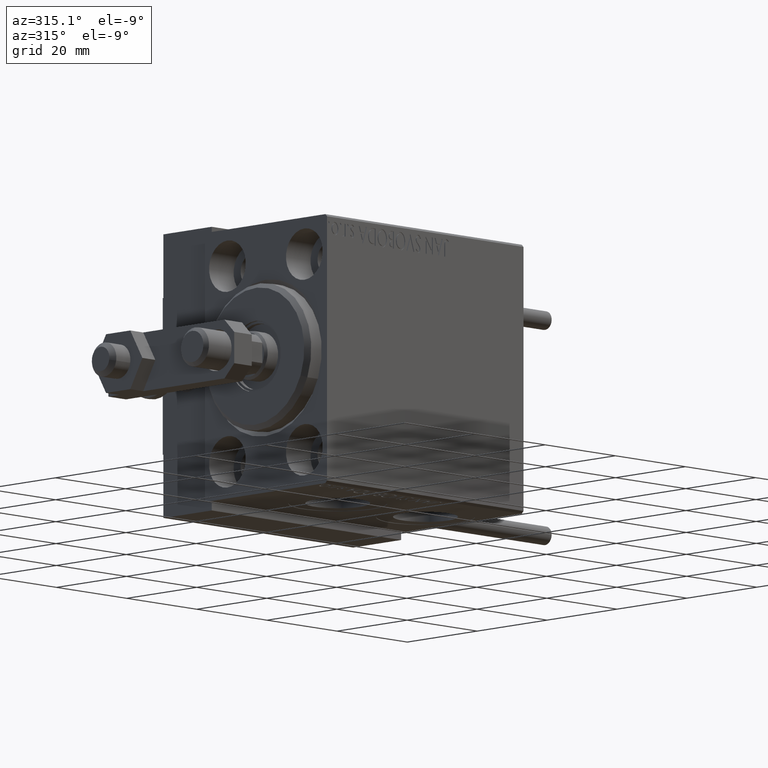
[diagram: clean part render]
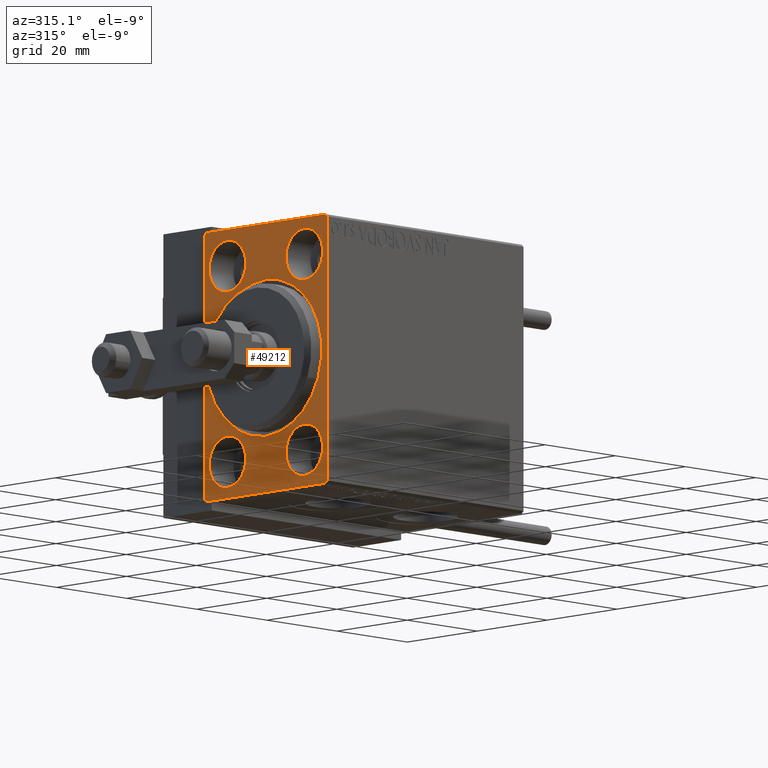
[diagram: same view with one face highlighted and labeled with its STEP entity id]
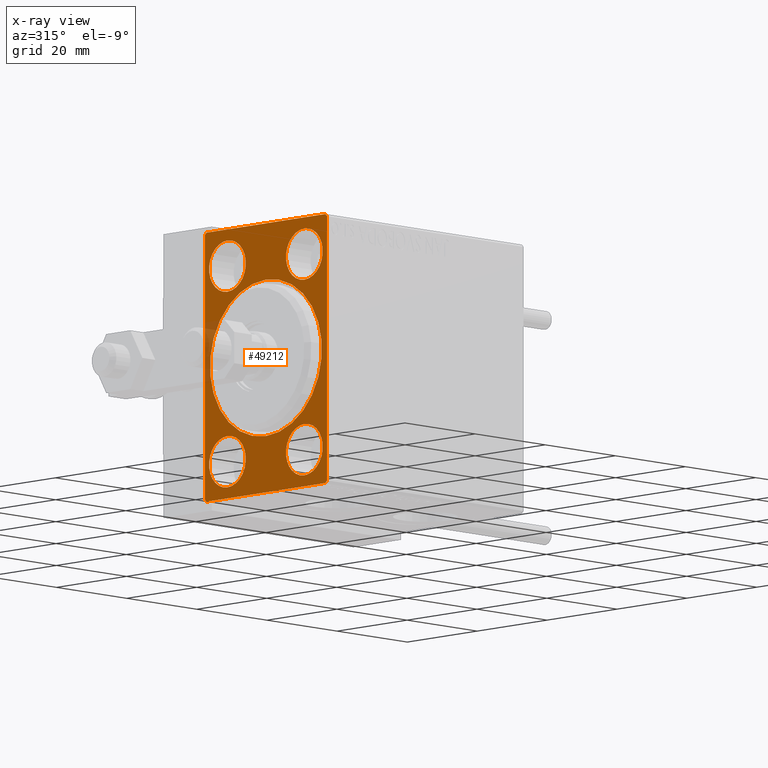
[diagram: x-ray of the same camera — body ghosted, the highlighted face saturated]
A machine part, auxiliary view. The second image highlights one B-rep face of the part: STEP entity #49212.
The next image is the same camera in x-ray: the body ghosted, the highlighted face saturated — about 4% of this face is hidden behind the body in this view.
In plain terms, the highlighted planar face has unit normal (1, 0, 0).
Its self-contained STEP definition (entity closure, byte-faithful):
#24 = ORIENTED_EDGE ( 'NONE', *, *, #2395, .T. ) ;
#1020 = VECTOR ( 'NONE', #6841, 1000.000000000000114 ) ;
#1048 = CARTESIAN_POINT ( 'NONE',  ( 0.000000000000000000, -16.99999999999999289, -27.50000000000000355 ) ) ;
#1400 = CARTESIAN_POINT ( 'NONE',  ( 0.000000000000000000, 17.50000000000000711, -27.50000000000000355 ) ) ;
#1819 = CARTESIAN_POINT ( 'NONE',  ( 0.000000000000000000, 17.50000000000000711, -27.00000000000000355 ) ) ;
#1965 = DIRECTION ( 'NONE',  ( 0.000000000000000000, 0.000000000000000000, 1.000000000000000000 ) ) ;
#2002 = EDGE_CURVE ( 'NONE', #2263, #47875, #7705, .T. ) ;
#2252 = VERTEX_POINT ( 'NONE', #13257 ) ;
#2263 = VERTEX_POINT ( 'NONE', #37166 ) ;
#2395 = EDGE_CURVE ( 'NONE', #16975, #40878, #8317, .T. ) ;
#2547 = FACE_BOUND ( 'NONE', #21468, .T. ) ;
#2845 = VERTEX_POINT ( 'NONE', #30084 ) ;
#2905 = CARTESIAN_POINT ( 'NONE',  ( 0.000000000000000000, -17.50000000000000000, 27.49999999999999645 ) ) ;
#3201 = VECTOR ( 'NONE', #40061, 1000.000000000000000 ) ;
#3216 = CARTESIAN_POINT ( 'NONE',  ( 0.000000000000000000, -16.99999999999999289, -27.50000000000000355 ) ) ;
#3459 = LINE ( 'NONE', #3216, #1020 ) ;
#3764 = VERTEX_POINT ( 'NONE', #1048 ) ;
#3942 = EDGE_CURVE ( 'NONE', #3953, #2845, #13514, .T. ) ;
#3953 = VERTEX_POINT ( 'NONE', #8458 ) ;
#4591 = CARTESIAN_POINT ( 'NONE',  ( 0.000000000000000000, 17.50000000000000000, 26.99999999999999645 ) ) ;
#5348 = DIRECTION ( 'NONE',  ( 1.000000000000000000, 0.000000000000000000, 0.000000000000000000 ) ) ;
#5423 = CARTESIAN_POINT ( 'NONE',  ( 0.000000000000000000, 0.000000000000000000, 16.00000000000001421 ) ) ;
#5893 = DIRECTION ( 'NONE',  ( 0.000000000000000000, 0.000000000000000000, 1.000000000000000000 ) ) ;
#5980 = CARTESIAN_POINT ( 'NONE',  ( 0.000000000000000000, -11.00000000000000355, -14.75000000000000000 ) ) ;
#6084 = CARTESIAN_POINT ( 'NONE',  ( 0.000000000000000000, 11.00000000000000355, 20.00000000000000000 ) ) ;
#6335 = AXIS2_PLACEMENT_3D ( 'NONE', #22814, #46981, #38518 ) ;
#6841 = DIRECTION ( 'NONE',  ( -0.000000000000000000, -0.7071067811865474617, 0.7071067811865474617 ) ) ;
#7292 = AXIS2_PLACEMENT_3D ( 'NONE', #9706, #5348, #48782 ) ;
#7298 = DIRECTION ( 'NONE',  ( 0.000000000000000000, 1.000000000000000000, 0.000000000000000000 ) ) ;
#7618 = DIRECTION ( 'NONE',  ( -0.000000000000000000, 0.7071067811865474617, 0.7071067811865474617 ) ) ;
#7705 = CIRCLE ( 'NONE', #29062, 5.250000000000000888 ) ;
#7952 = EDGE_CURVE ( 'NONE', #27228, #19435, #38139, .T. ) ;
#8317 = LINE ( 'NONE', #12430, #41370 ) ;
#8458 = CARTESIAN_POINT ( 'NONE',  ( 0.000000000000000000, 11.00000000000000355, -14.75000000000000000 ) ) ;
#9564 = EDGE_CURVE ( 'NONE', #43182, #43241, #17530, .T. ) ;
#9706 = CARTESIAN_POINT ( 'NONE',  ( 0.000000000000000000, 0.000000000000000000, 0.000000000000000000 ) ) ;
#9818 = EDGE_CURVE ( 'NONE', #43241, #43182, #50361, .T. ) ;
#10271 = FACE_OUTER_BOUND ( 'NONE', #11731, .T. ) ;
#10627 = AXIS2_PLACEMENT_3D ( 'NONE', #28938, #47988, #41034 ) ;
#11081 = ORIENTED_EDGE ( 'NONE', *, *, #37244, .F. ) ;
#11517 = DIRECTION ( 'NONE',  ( 0.000000000000000000, 0.000000000000000000, 1.000000000000000000 ) ) ;
#11731 = EDGE_LOOP ( 'NONE', ( #35323, #45069, #32314, #24, #11081, #40621, #43850, #32657 ) ) ;
#12047 = VERTEX_POINT ( 'NONE', #29430 ) ;
#12430 = CARTESIAN_POINT ( 'NONE',  ( 0.000000000000000000, 16.99999999999999289, 27.50000000000000355 ) ) ;
#13257 = CARTESIAN_POINT ( 'NONE',  ( 0.000000000000000000, 17.00000000000000711, -27.50000000000000355 ) ) ;
#13514 = CIRCLE ( 'NONE', #50418, 5.250000000000000888 ) ;
#13615 = VERTEX_POINT ( 'NONE', #5423 ) ;
#13747 = AXIS2_PLACEMENT_3D ( 'NONE', #49841, #30298, #5893 ) ;
#13875 = PLANE ( 'NONE',  #30573 ) ;
#14310 = ORIENTED_EDGE ( 'NONE', *, *, #43197, .T. ) ;
#14533 = EDGE_CURVE ( 'NONE', #3764, #2252, #31438, .T. ) ;
#15326 = DIRECTION ( 'NONE',  ( 0.000000000000000000, 0.000000000000000000, 1.000000000000000000 ) ) ;
#15407 = DIRECTION ( 'NONE',  ( -1.000000000000000000, 0.000000000000000000, 0.000000000000000000 ) ) ;
#16174 = CIRCLE ( 'NONE', #6335, 5.250000000000000888 ) ;
#16181 = CARTESIAN_POINT ( 'NONE',  ( 0.000000000000000000, 1.959434878635766709E-15, -16.00000000000001421 ) ) ;
#16536 = AXIS2_PLACEMENT_3D ( 'NONE', #29867, #25496, #45059 ) ;
#16840 = DIRECTION ( 'NONE',  ( 0.000000000000000000, -1.261617073437677752E-16, 1.000000000000000000 ) ) ;
#16975 = VERTEX_POINT ( 'NONE', #17418 ) ;
#17166 = VECTOR ( 'NONE', #16840, 1000.000000000000000 ) ;
#17418 = CARTESIAN_POINT ( 'NONE',  ( 0.000000000000000000, 16.99999999999999289, 27.50000000000000355 ) ) ;
#17530 = CIRCLE ( 'NONE', #42159, 5.250000000000000888 ) ;
#17907 = EDGE_CURVE ( 'NONE', #27228, #46982, #49806, .T. ) ;
#19435 = VERTEX_POINT ( 'NONE', #26280 ) ;
#19501 = DIRECTION ( 'NONE',  ( 0.000000000000000000, 0.000000000000000000, 1.000000000000000000 ) ) ;
#19613 = CARTESIAN_POINT ( 'NONE',  ( 0.000000000000000000, -17.50000000000000000, -27.50000000000000355 ) ) ;
#20016 = CARTESIAN_POINT ( 'NONE',  ( 0.000000000000000000, 11.00000000000000355, -20.00000000000000000 ) ) ;
#20260 = VECTOR ( 'NONE', #24446, 1000.000000000000114 ) ;
#20670 = EDGE_CURVE ( 'NONE', #25355, #2252, #34770, .T. ) ;
#21146 = EDGE_CURVE ( 'NONE', #28181, #12047, #16174, .T. ) ;
#21468 = EDGE_LOOP ( 'NONE', ( #49198, #49712 ) ) ;
#21752 = EDGE_LOOP ( 'NONE', ( #28105, #50277 ) ) ;
#22044 = EDGE_CURVE ( 'NONE', #2845, #3953, #22762, .T. ) ;
#22144 = CARTESIAN_POINT ( 'NONE',  ( 0.000000000000000000, -11.00000000000000355, -25.25000000000000000 ) ) ;
#22330 = FACE_BOUND ( 'NONE', #21752, .T. ) ;
#22762 = CIRCLE ( 'NONE', #13747, 5.250000000000000888 ) ;
#22814 = CARTESIAN_POINT ( 'NONE',  ( 0.000000000000000000, 11.00000000000000355, 20.00000000000000000 ) ) ;
#23041 = CARTESIAN_POINT ( 'NONE',  ( 0.000000000000000000, 11.00000000000000355, 14.75000000000000000 ) ) ;
#24446 = DIRECTION ( 'NONE',  ( 0.000000000000000000, -0.7071067811865474617, -0.7071067811865474617 ) ) ;
#25355 = VERTEX_POINT ( 'NONE', #47210 ) ;
#25390 = CIRCLE ( 'NONE', #10627, 5.250000000000000888 ) ;
#25404 = AXIS2_PLACEMENT_3D ( 'NONE', #6084, #44921, #1965 ) ;
#25496 = DIRECTION ( 'NONE',  ( 1.000000000000000000, 0.000000000000000000, 0.000000000000000000 ) ) ;
#25793 = LINE ( 'NONE', #1400, #17166 ) ;
#26235 = EDGE_CURVE ( 'NONE', #47875, #2263, #25390, .T. ) ;
#26280 = CARTESIAN_POINT ( 'NONE',  ( 0.000000000000000000, -17.50000000000000000, -26.99999999999999645 ) ) ;
#26651 = CARTESIAN_POINT ( 'NONE',  ( 0.000000000000000000, -17.50000000000000000, 26.99999999999998934 ) ) ;
#26707 = FACE_BOUND ( 'NONE', #37314, .T. ) ;
#26730 = VECTOR ( 'NONE', #7618, 1000.000000000000114 ) ;
#27228 = VERTEX_POINT ( 'NONE', #43678 ) ;
#27754 = CIRCLE ( 'NONE', #25404, 5.250000000000000888 ) ;
#27903 = ORIENTED_EDGE ( 'NONE', *, *, #22044, .F. ) ;
#28105 = ORIENTED_EDGE ( 'NONE', *, *, #26235, .F. ) ;
#28181 = VERTEX_POINT ( 'NONE', #23041 ) ;
#28199 = AXIS2_PLACEMENT_3D ( 'NONE', #38717, #34856, #15326 ) ;
#28938 = CARTESIAN_POINT ( 'NONE',  ( 0.000000000000000000, -11.00000000000000355, 20.00000000000000000 ) ) ;
#29062 = AXIS2_PLACEMENT_3D ( 'NONE', #43167, #15407, #19501 ) ;
#29207 = EDGE_LOOP ( 'NONE', ( #40989, #35151 ) ) ;
#29430 = CARTESIAN_POINT ( 'NONE',  ( 0.000000000000000000, 11.00000000000000355, 25.25000000000000000 ) ) ;
#29449 = CIRCLE ( 'NONE', #7292, 16.00000000000001421 ) ;
#29867 = CARTESIAN_POINT ( 'NONE',  ( 0.000000000000000000, 0.000000000000000000, 0.000000000000000000 ) ) ;
#30084 = CARTESIAN_POINT ( 'NONE',  ( 0.000000000000000000, 11.00000000000000355, -25.25000000000000000 ) ) ;
#30298 = DIRECTION ( 'NONE',  ( -1.000000000000000000, 0.000000000000000000, 0.000000000000000000 ) ) ;
#30573 = AXIS2_PLACEMENT_3D ( 'NONE', #45755, #41899, #38033 ) ;
#30807 = ORIENTED_EDGE ( 'NONE', *, *, #3942, .F. ) ;
#31438 = LINE ( 'NONE', #19613, #46343 ) ;
#31606 = DIRECTION ( 'NONE',  ( 0.000000000000000000, 0.000000000000000000, 1.000000000000000000 ) ) ;
#32314 = ORIENTED_EDGE ( 'NONE', *, *, #36590, .F. ) ;
#32657 = ORIENTED_EDGE ( 'NONE', *, *, #46337, .T. ) ;
#33350 = LINE ( 'NONE', #48291, #3201 ) ;
#34276 = DIRECTION ( 'NONE',  ( 0.000000000000000000, 0.000000000000000000, -1.000000000000000000 ) ) ;
#34375 = EDGE_CURVE ( 'NONE', #12047, #28181, #27754, .T. ) ;
#34770 = LINE ( 'NONE', #1819, #20260 ) ;
#34856 = DIRECTION ( 'NONE',  ( -1.000000000000000000, 0.000000000000000000, 0.000000000000000000 ) ) ;
#35151 = ORIENTED_EDGE ( 'NONE', *, *, #21146, .F. ) ;
#35323 = ORIENTED_EDGE ( 'NONE', *, *, #7952, .F. ) ;
#35672 = DIRECTION ( 'NONE',  ( -1.000000000000000000, 0.000000000000000000, 0.000000000000000000 ) ) ;
#36518 = EDGE_CURVE ( 'NONE', #13615, #44628, #29449, .T. ) ;
#36590 = EDGE_CURVE ( 'NONE', #16975, #46982, #33350, .T. ) ;
#37166 = CARTESIAN_POINT ( 'NONE',  ( 0.000000000000000000, -11.00000000000000355, 14.75000000000000000 ) ) ;
#37244 = EDGE_CURVE ( 'NONE', #25355, #40878, #25793, .T. ) ;
#37314 = EDGE_LOOP ( 'NONE', ( #50083, #14310 ) ) ;
#38033 = DIRECTION ( 'NONE',  ( 0.000000000000000000, 0.000000000000000000, -1.000000000000000000 ) ) ;
#38139 = LINE ( 'NONE', #2905, #41279 ) ;
#38518 = DIRECTION ( 'NONE',  ( 0.000000000000000000, 0.000000000000000000, 1.000000000000000000 ) ) ;
#38717 = CARTESIAN_POINT ( 'NONE',  ( 0.000000000000000000, -11.00000000000000355, -20.00000000000000000 ) ) ;
#39035 = CARTESIAN_POINT ( 'NONE',  ( 0.000000000000000000, -11.00000000000000355, 25.25000000000000000 ) ) ;
#39190 = DIRECTION ( 'NONE',  ( -0.000000000000000000, 0.7071067811865474617, -0.7071067811865474617 ) ) ;
#39284 = CARTESIAN_POINT ( 'NONE',  ( 0.000000000000000000, -11.00000000000000355, -20.00000000000000000 ) ) ;
#39330 = DIRECTION ( 'NONE',  ( -1.000000000000000000, 0.000000000000000000, 0.000000000000000000 ) ) ;
#40061 = DIRECTION ( 'NONE',  ( 0.000000000000000000, -1.000000000000000000, -1.982541115402065110E-16 ) ) ;
#40355 = CIRCLE ( 'NONE', #16536, 16.00000000000001421 ) ;
#40621 = ORIENTED_EDGE ( 'NONE', *, *, #20670, .T. ) ;
#40878 = VERTEX_POINT ( 'NONE', #4591 ) ;
#40989 = ORIENTED_EDGE ( 'NONE', *, *, #34375, .F. ) ;
#41034 = DIRECTION ( 'NONE',  ( 0.000000000000000000, 0.000000000000000000, 1.000000000000000000 ) ) ;
#41279 = VECTOR ( 'NONE', #34276, 1000.000000000000000 ) ;
#41370 = VECTOR ( 'NONE', #39190, 1000.000000000000114 ) ;
#41642 = FACE_BOUND ( 'NONE', #29207, .T. ) ;
#41899 = DIRECTION ( 'NONE',  ( 1.000000000000000000, 0.000000000000000000, 0.000000000000000000 ) ) ;
#42159 = AXIS2_PLACEMENT_3D ( 'NONE', #39284, #35672, #11517 ) ;
#43167 = CARTESIAN_POINT ( 'NONE',  ( 0.000000000000000000, -11.00000000000000355, 20.00000000000000000 ) ) ;
#43182 = VERTEX_POINT ( 'NONE', #22144 ) ;
#43197 = EDGE_CURVE ( 'NONE', #44628, #13615, #40355, .T. ) ;
#43241 = VERTEX_POINT ( 'NONE', #5980 ) ;
#43678 = CARTESIAN_POINT ( 'NONE',  ( 0.000000000000000000, -17.50000000000000000, 26.99999999999998934 ) ) ;
#43850 = ORIENTED_EDGE ( 'NONE', *, *, #14533, .F. ) ;
#44628 = VERTEX_POINT ( 'NONE', #16181 ) ;
#44921 = DIRECTION ( 'NONE',  ( -1.000000000000000000, 0.000000000000000000, 0.000000000000000000 ) ) ;
#45059 = DIRECTION ( 'NONE',  ( 0.000000000000000000, 0.000000000000000000, -1.000000000000000000 ) ) ;
#45069 = ORIENTED_EDGE ( 'NONE', *, *, #17907, .T. ) ;
#45755 = CARTESIAN_POINT ( 'NONE',  ( 0.000000000000000000, 0.000000000000000000, 0.000000000000000000 ) ) ;
#46337 = EDGE_CURVE ( 'NONE', #3764, #19435, #3459, .T. ) ;
#46343 = VECTOR ( 'NONE', #7298, 1000.000000000000000 ) ;
#46981 = DIRECTION ( 'NONE',  ( -1.000000000000000000, 0.000000000000000000, 0.000000000000000000 ) ) ;
#46982 = VERTEX_POINT ( 'NONE', #47751 ) ;
#47036 = EDGE_LOOP ( 'NONE', ( #30807, #27903 ) ) ;
#47210 = CARTESIAN_POINT ( 'NONE',  ( 0.000000000000000000, 17.50000000000000711, -27.00000000000000355 ) ) ;
#47751 = CARTESIAN_POINT ( 'NONE',  ( 0.000000000000000000, -16.99999999999999289, 27.49999999999999645 ) ) ;
#47875 = VERTEX_POINT ( 'NONE', #39035 ) ;
#47988 = DIRECTION ( 'NONE',  ( -1.000000000000000000, 0.000000000000000000, 0.000000000000000000 ) ) ;
#48291 = CARTESIAN_POINT ( 'NONE',  ( 0.000000000000000000, 17.50000000000000000, 27.50000000000000355 ) ) ;
#48782 = DIRECTION ( 'NONE',  ( 0.000000000000000000, 0.000000000000000000, -1.000000000000000000 ) ) ;
#49198 = ORIENTED_EDGE ( 'NONE', *, *, #9818, .F. ) ;
#49212 = ADVANCED_FACE ( 'NONE', ( #26707, #49861, #22330, #41642, #2547, #10271 ), #13875, .F. ) ;
#49712 = ORIENTED_EDGE ( 'NONE', *, *, #9564, .F. ) ;
#49806 = LINE ( 'NONE', #26651, #26730 ) ;
#49841 = CARTESIAN_POINT ( 'NONE',  ( 0.000000000000000000, 11.00000000000000355, -20.00000000000000000 ) ) ;
#49861 = FACE_BOUND ( 'NONE', #47036, .T. ) ;
#50083 = ORIENTED_EDGE ( 'NONE', *, *, #36518, .T. ) ;
#50277 = ORIENTED_EDGE ( 'NONE', *, *, #2002, .F. ) ;
#50361 = CIRCLE ( 'NONE', #28199, 5.250000000000000888 ) ;
#50418 = AXIS2_PLACEMENT_3D ( 'NONE', #20016, #39330, #31606 ) ;